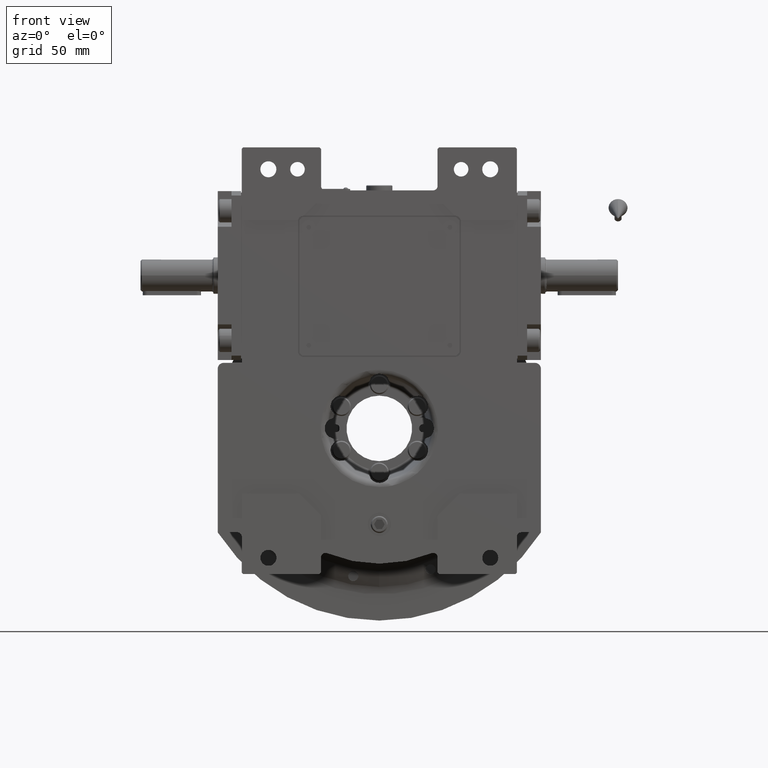
[diagram: clean part render]
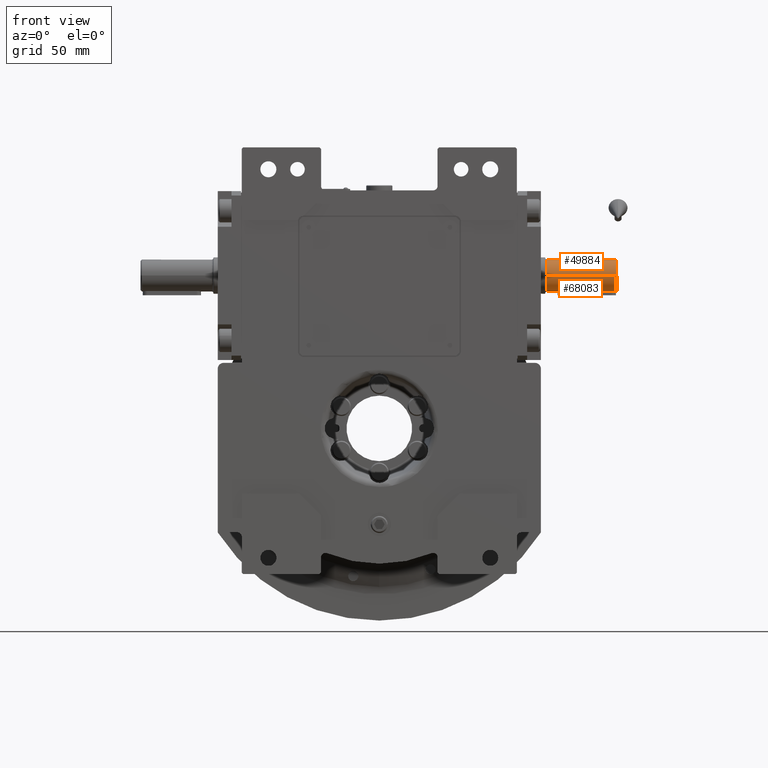
[diagram: same view with one multi-face feature highlighted, each face labeled with its STEP entity id]
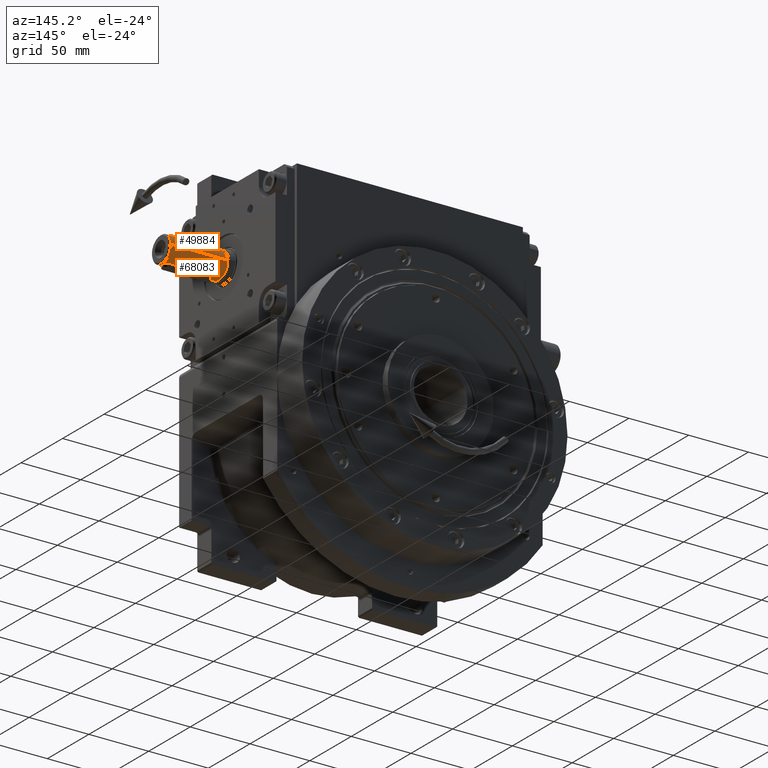
[diagram: same view with one multi-face feature highlighted, each face labeled with its STEP entity id]
A machine part, front view. The highlighted faces form ONE feature: a constant-radius fillet chain: 2 tangent blend faces with common blend radius 11 mm. The faces share edges in the B-rep.
A second angle (auxiliary view) of the same feature is appended — it is thin or edge-on in the first view.
Their STEP definitions:
[1] entity #49884 (Cylinder):
#1221 = CARTESIAN_POINT ( 'NONE',  ( -11.00000000000006573, -68.99999999999998579, 4.629532868172248072E-09 ) ) ;
#2359 = EDGE_CURVE ( 'NONE', #17176, #59268, #30734, .T. ) ;
#2820 = CARTESIAN_POINT ( 'NONE',  ( -9.611494386408557133, -116.9998216058297373, -5.539718941646062156 ) ) ;
#4843 = VERTEX_POINT ( 'NONE', #53805 ) ;
#5066 = CARTESIAN_POINT ( 'NONE',  ( 1.439873256063811002, -116.9998216059483411, -10.99982159980619301 ) ) ;
#7315 = CARTESIAN_POINT ( 'NONE',  ( -5.539718936738628585, -116.9998216058824596, -9.611494389174946917 ) ) ;
#8650 = ORIENTED_EDGE ( 'NONE', *, *, #55269, .F. ) ;
#9881 = DIRECTION ( 'NONE',  ( -4.683861624749757595E-31, 1.000000000000000000, 9.367723249499515189E-31 ) ) ;
#9899 = CARTESIAN_POINT ( 'NONE',  ( 1.059182348684642729E-13, -116.9999108029440293, -10.99991079990969034 ) ) ;
#10403 = EDGE_CURVE ( 'NONE', #17176, #48946, #53160, .T. ) ;
#12144 = CARTESIAN_POINT ( 'NONE',  ( -10.99982159923404978, -116.9998216057902027, -1.439873285504059020 ) ) ;
#14222 = ORIENTED_EDGE ( 'NONE', *, *, #2359, .T. ) ;
#16852 = CARTESIAN_POINT ( 'NONE',  ( -11.00000000000006573, -68.99999999999998579, 5.273559366969493567E-13 ) ) ;
#17176 = VERTEX_POINT ( 'NONE', #1221 ) ;
#17487 = ORIENTED_EDGE ( 'NONE', *, *, #46783, .F. ) ;
#19666 = AXIS2_PLACEMENT_3D ( 'NONE', #48694, #22442, #59393 ) ;
#20591 = CYLINDRICAL_SURFACE ( 'NONE', #53434, 11.00000000000000000 ) ;
#21045 = CARTESIAN_POINT ( 'NONE',  ( 1.059182348684642729E-13, -116.9999108029440293, -10.99991079990969034 ) ) ;
#22101 = EDGE_CURVE ( 'NONE', #59268, #4843, #60435, .T. ) ;
#22442 = DIRECTION ( 'NONE',  ( -1.291895883200174501E-15, -1.000000000000000000, -1.291896081311685042E-15 ) ) ;
#25825 = CARTESIAN_POINT ( 'NONE',  ( 9.611494287303125716, -116.9998216060405696, -5.539719106973016949 ) ) ;
#26505 = CARTESIAN_POINT ( 'NONE',  ( 2.879179983519541519, -116.9998216059615288, -10.71352569620695228 ) ) ;
#26926 = DIRECTION ( 'NONE',  ( 4.683861624749757595E-31, -1.000000000000000000, -9.367723249499515189E-31 ) ) ;
#28394 = ORIENTED_EDGE ( 'NONE', *, *, #10403, .F. ) ;
#28467 = B_SPLINE_CURVE_WITH_KNOTS ( 'NONE', 3,
 ( #9899, #5066, #26505, #53451, #62441, #47222, #25825, #67963, #62771, #57596 ),
 .UNSPECIFIED., .F., .F.,
 ( 4, 2, 2, 2, 4 ),
 ( 0.5000000041388068528, 0.6250000031041051951, 0.7500000020694034264, 0.8750000010347016577, 1.000000000000000000 ),
 .UNSPECIFIED. ) ;
#28607 = VERTEX_POINT ( 'NONE', #21045 ) ;
#28787 = CARTESIAN_POINT ( 'NONE',  ( -11.00000000000000000, -116.9999777057607702, 5.273559366969493567E-13 ) ) ;
#30734 = CIRCLE ( 'NONE', #19666, 11.00000000000000000 ) ;
#33232 = CARTESIAN_POINT ( 'NONE',  ( -10.71352568530421223, -116.9998216058034046, -2.879180036625847094 ) ) ;
#33372 = B_SPLINE_CURVE_WITH_KNOTS ( 'NONE', 3,
 ( #66028, #12144, #33232, #2820, #54325, #39777, #7315, #60858, #54991, #59852 ),
 .UNSPECIFIED., .F., .F.,
 ( 4, 2, 2, 2, 4 ),
 ( 0.000000000000000000, 0.1250000010347017132, 0.2500000020694034264, 0.3750000031041051396, 0.5000000041388068528 ),
 .UNSPECIFIED. ) ;
#35523 = CARTESIAN_POINT ( 'NONE',  ( 10.99999999999993427, -68.99999999999998579, 0.000000000000000000 ) ) ;
#39777 = CARTESIAN_POINT ( 'NONE',  ( -6.759904282614550119, -116.9998216058692577, -8.796192607111159134 ) ) ;
#44292 = VECTOR ( 'NONE', #26926, 1000.000000000000000 ) ;
#44551 = DIRECTION ( 'NONE',  ( 4.683861624749757595E-31, -1.000000000000000000, -9.367723249499515189E-31 ) ) ;
#45040 = CARTESIAN_POINT ( 'NONE',  ( 10.99999999999993427, -68.99999999999998579, -4.629005512235551123E-09 ) ) ;
#46783 = EDGE_CURVE ( 'NONE', #48946, #28607, #33372, .T. ) ;
#47222 = CARTESIAN_POINT ( 'NONE',  ( 8.796192498803552695, -116.9998216060273819, -6.759904418208753540 ) ) ;
#48694 = CARTESIAN_POINT ( 'NONE',  ( 1.776356839400278864E-15, -68.99999999999998579, 0.000000000000000000 ) ) ;
#48946 = VERTEX_POINT ( 'NONE', #28787 ) ;
#49884 = ADVANCED_FACE ( 'NONE', ( #60392 ), #20591, .T. ) ;
#53160 = LINE ( 'NONE', #16852, #44292 ) ;
#53434 = AXIS2_PLACEMENT_3D ( 'NONE', #56897, #9881, #67606 ) ;
#53451 = CARTESIAN_POINT ( 'NONE',  ( 5.539718852179540853, -116.9998216059878615, -9.611494434218551319 ) ) ;
#53805 = CARTESIAN_POINT ( 'NONE',  ( 10.99995538991750088, -116.9999554115215972, -1.645563268981575789E-07 ) ) ;
#54200 = VECTOR ( 'NONE', #44551, 1000.000000000000000 ) ;
#54325 = CARTESIAN_POINT ( 'NONE',  ( -8.796192603699385160, -116.9998216058429392, -6.759904287097091569 ) ) ;
#54991 = CARTESIAN_POINT ( 'NONE',  ( -1.439873279901028313, -116.9998216059219800, -10.99982159983257013 ) ) ;
#55269 = EDGE_CURVE ( 'NONE', #28607, #4843, #28467, .T. ) ;
#56897 = CARTESIAN_POINT ( 'NONE',  ( 3.620748295448003404E-29, -67.99999999999998579, 0.000000000000000000 ) ) ;
#57596 = CARTESIAN_POINT ( 'NONE',  ( 10.99995538991750088, -116.9999554115215972, -1.645563268981575789E-07 ) ) ;
#59268 = VERTEX_POINT ( 'NONE', #45040 ) ;
#59393 = DIRECTION ( 'NONE',  ( -1.000000000000000000, 1.261617073437677851E-15, 8.560159667065924855E-15 ) ) ;
#59852 = CARTESIAN_POINT ( 'NONE',  ( 1.059182348684642729E-13, -116.9999108029440293, -10.99991079990969034 ) ) ;
#60176 = EDGE_LOOP ( 'NONE', ( #61209, #8650, #17487, #28394, #14222 ) ) ;
#60392 = FACE_OUTER_BOUND ( 'NONE', #60176, .T. ) ;
#60435 = LINE ( 'NONE', #35523, #54200 ) ;
#60858 = CARTESIAN_POINT ( 'NONE',  ( -2.879180031158039554, -116.9998216059088207, -10.71352568666365812 ) ) ;
#61209 = ORIENTED_EDGE ( 'NONE', *, *, #22101, .T. ) ;
#62441 = CARTESIAN_POINT ( 'NONE',  ( 6.759904185019784073, -116.9998216060010634, -8.796192678042912050 ) ) ;
#62771 = CARTESIAN_POINT ( 'NONE',  ( 10.99982156150045576, -116.9998216060801184, -1.439873547674197729 ) ) ;
#66028 = CARTESIAN_POINT ( 'NONE',  ( -11.00000000000000000, -116.9999777057607702, 5.273559366969493567E-13 ) ) ;
#67606 = DIRECTION ( 'NONE',  ( 1.000000000000000000, 0.000000000000000000, -8.437694987151189707E-15 ) ) ;
#67963 = CARTESIAN_POINT ( 'NONE',  ( 10.71352561977216489, -116.9998216060669591, -2.879180267529457105 ) ) ;
[2] entity #68083 (Cylinder):
#528 = CARTESIAN_POINT ( 'NONE',  ( 2.715325038918777523, -114.7760518172380699, 10.65964338194962124 ) ) ;
#1221 = CARTESIAN_POINT ( 'NONE',  ( -11.00000000000006573, -68.99999999999998579, 4.629532868172248072E-09 ) ) ;
#1877 = CARTESIAN_POINT ( 'NONE',  ( 2.831211770136889072, -78.50588405666756842, 10.62945303911932804 ) ) ;
#3230 = CARTESIAN_POINT ( 'NONE',  ( -1.678559112345122672, -77.01162412007894886, 10.87070389964726402 ) ) ;
#3271 = CARTESIAN_POINT ( 'NONE',  ( -1.167542354307712582, -116.2634876482831885, 10.93782163464070400 ) ) ;
#3576 = CARTESIAN_POINT ( 'NONE',  ( -1.765016624746357010, -77.07156072167512662, 10.85718209647029475 ) ) ;
#3911 = CARTESIAN_POINT ( 'NONE',  ( -2.767734022706493047, -78.34256117663541374, 10.64590627712732740 ) ) ;
#3953 = CARTESIAN_POINT ( 'NONE',  ( -0.7693703390108382889, -116.4290453187169447, 10.97984354623238090 ) ) ;
#4236 = CARTESIAN_POINT ( 'NONE',  ( -2.076400037132151599, -77.33447251311093851, 10.80229493266119434 ) ) ;
#4572 = CARTESIAN_POINT ( 'NONE',  ( 0.7694194017131937846, -76.57097508176855172, 10.97983836647602018 ) ) ;
#4585 = VERTEX_POINT ( 'NONE', #32574 ) ;
#4677 = CARTESIAN_POINT ( 'NONE',  ( 0.3790608987632844706, -116.4824670251810517, 10.99496090284166705 ) ) ;
#4843 = VERTEX_POINT ( 'NONE', #53805 ) ;
#5323 = EDGE_CURVE ( 'NONE', #4585, #35935, #43647, .T. ) ;
#5450 = VECTOR ( 'NONE', #17683, 1000.000000000000000 ) ;
#5485 = VERTEX_POINT ( 'NONE', #23314 ) ;
#5690 = CARTESIAN_POINT ( 'NONE',  ( 0.6690861450673732946, -116.4260934555811104, 10.97984357599114880 ) ) ;
#6044 = CARTESIAN_POINT ( 'NONE',  ( 1.678559104117559819, -115.9883758853584084, 10.87070390129213138 ) ) ;
#6308 = CARTESIAN_POINT ( 'NONE',  ( -3.000000000000082601, -79.50000000000000000, 10.58300524425888334 ) ) ;
#7724 = CARTESIAN_POINT ( 'NONE',  ( 2.722192573648582137, -78.23282225677793633, 10.65774367791932775 ) ) ;
#8740 = CARTESIAN_POINT ( 'NONE',  ( -2.759870980699486331, -78.32389235596372146, 10.64795842689012595 ) ) ;
#8780 = CARTESIAN_POINT ( 'NONE',  ( -1.761503382609289847, -115.9362690075038529, 10.85852761684812862 ) ) ;
#8968 = ORIENTED_EDGE ( 'NONE', *, *, #29864, .F. ) ;
#9094 = CARTESIAN_POINT ( 'NONE',  ( -2.446669716984170240, -77.75293800781821574, 10.72593579876058989 ) ) ;
#9421 = CARTESIAN_POINT ( 'NONE',  ( -0.9835474860783316453, -76.66500154434591252, 10.95606725368482159 ) ) ;
#9462 = CARTESIAN_POINT ( 'NONE',  ( -1.179703648397006699, -116.2583393865913735, 10.93651199430380849 ) ) ;
#9580 = VERTEX_POINT ( 'NONE', #6308 ) ;
#9752 = CARTESIAN_POINT ( 'NONE',  ( -0.1869661389846583033, -76.49999999149008545, 11.00000259683246107 ) ) ;
#9910 = CARTESIAN_POINT ( 'NONE',  ( -1.439873276542319003, -116.9998216057749829, 10.99982160044518054 ) ) ;
#10092 = CARTESIAN_POINT ( 'NONE',  ( -1.897425705273303231, -77.17558051408445863, 10.83486051008065232 ) ) ;
#10205 = CARTESIAN_POINT ( 'NONE',  ( 2.698907439500289662, -114.8105446094941016, 10.66393854603839664 ) ) ;
#10403 = EDGE_CURVE ( 'NONE', #17176, #48946, #53160, .T. ) ;
#10541 = CARTESIAN_POINT ( 'NONE',  ( 2.748365588725772746, -114.7029063017646848, 10.65097208023461306 ) ) ;
#10870 = CARTESIAN_POINT ( 'NONE',  ( 2.759870969660119577, -114.6761076698510777, 10.64795842477048460 ) ) ;
#11566 = CARTESIAN_POINT ( 'NONE',  ( 1.897425668525942299, -115.8244195156949559, 10.83486051743275169 ) ) ;
#12212 = CARTESIAN_POINT ( 'NONE',  ( -9.611494385370821902, -116.9998216057772851, 5.539718943597145007 ) ) ;
#12894 = CARTESIAN_POINT ( 'NONE',  ( 2.775339617218714139, -78.36091024210715261, 10.64392872073233676 ) ) ;
#13230 = CARTESIAN_POINT ( 'NONE',  ( 2.772312094891018042, -78.35357017498775178, 10.64471543622012106 ) ) ;
#13403 = CARTESIAN_POINT ( 'NONE',  ( 10.71352568672909200, -116.9998216057713591, 2.879180031534910089 ) ) ;
#13533 = CARTESIAN_POINT ( 'NONE',  ( -3.000000000000082601, -79.50000000000000000, 10.58300524425888334 ) ) ;
#13958 = CARTESIAN_POINT ( 'NONE',  ( -1.157453281878278117, -116.2677325929767704, 10.93890079742459598 ) ) ;
#14704 = ORIENTED_EDGE ( 'NONE', *, *, #58009, .T. ) ;
#14925 = CARTESIAN_POINT ( 'NONE',  ( -2.768513025353059209, -78.34441746032423737, 10.64570308239705554 ) ) ;
#14965 = CARTESIAN_POINT ( 'NONE',  ( -2.722192558514678673, -114.7671777832958497, 10.65774368688965446 ) ) ;
#15255 = CARTESIAN_POINT ( 'NONE',  ( 1.167542316111690681, -76.73651233557792750, 10.93782163668136320 ) ) ;
#15419 = CARTESIAN_POINT ( 'NONE',  ( -8.796192602316857290, -116.9998216057769156, 6.759904289042772518 ) ) ;
#16050 = CARTESIAN_POINT ( 'NONE',  ( 2.837096110529150057E-11, -116.4999999999980531, 11.00000000000058797 ) ) ;
#16385 = CARTESIAN_POINT ( 'NONE',  ( 2.999999999999917843, -113.5000000000000000, 10.58300524425888334 ) ) ;
#16727 = FACE_BOUND ( 'NONE', #39452, .T. ) ;
#16733 = CARTESIAN_POINT ( 'NONE',  ( 1.139535427848337612, -116.2751577802371230, 10.94078554931923719 ) ) ;
#16817 = CARTESIAN_POINT ( 'NONE',  ( 2.999999999999917843, -79.50000000000000000, 10.58300524425835576 ) ) ;
#16852 = CARTESIAN_POINT ( 'NONE',  ( -11.00000000000006573, -68.99999999999998579, 5.273559366969493567E-13 ) ) ;
#17088 = AXIS2_PLACEMENT_3D ( 'NONE', #32958, #28153, #33660 ) ;
#17176 = VERTEX_POINT ( 'NONE', #1221 ) ;
#17393 = CARTESIAN_POINT ( 'NONE',  ( 2.854075951825543633, -78.57447758768164192, 10.62355100343920711 ) ) ;
#17683 = DIRECTION ( 'NONE',  ( 4.683861624749757595E-31, -1.000000000000000000, -9.367723249499515189E-31 ) ) ;
#17735 = CARTESIAN_POINT ( 'NONE',  ( 2.143602725504767825, -77.40095987968619795, 10.78918131756561039 ) ) ;
#18128 = CARTESIAN_POINT ( 'NONE',  ( -2.779840276394627274, -114.6280618357305627, 10.64275983503487488 ) ) ;
#18799 = CARTESIAN_POINT ( 'NONE',  ( -2.772312108321376645, -114.6464297925434010, 10.64471543525007213 ) ) ;
#19117 = CARTESIAN_POINT ( 'NONE',  ( -2.748365590163604821, -78.29709370118115430, 10.65097208548594132 ) ) ;
#19450 = CARTESIAN_POINT ( 'NONE',  ( -2.644564864743140564, -78.08127139920622994, 10.67795870610222941 ) ) ;
#19489 = CARTESIAN_POINT ( 'NONE',  ( -2.211193640723287057, -115.5277207285564600, 10.77562492031094799 ) ) ;
#19784 = CARTESIAN_POINT ( 'NONE',  ( 1.433641062204116023, -76.86340365390795171, 10.90581971317306831 ) ) ;
#19822 = CARTESIAN_POINT ( 'NONE',  ( -1.159479195746270008, -116.2668803960322350, 10.93868411794469786 ) ) ;
#20128 = CARTESIAN_POINT ( 'NONE',  ( -1.942007626757400685, -77.21260546847977935, 10.82708016768007298 ) ) ;
#20280 = B_SPLINE_CURVE_WITH_KNOTS ( 'NONE', 3,
 ( #64792, #60996, #54090, #22660, #23338, #66149, #65486, #24012, #45081, #18128, #39228, #18799, #14965, #40911, #62332, #61993, #45774, #45431, #46788, #19489, #40569, #25725, #56807, #8780, #66500, #35722, #50609, #40250, #30554, #61653, #9462, #3271, #19822, #13958, #3953, #34724, #46100 ),
 .UNSPECIFIED., .F., .F.,
 ( 4, 2, 2, 1, 1, 1, 2, 2, 2, 2, 2, 2, 2, 2, 2, 2, 1, 1, 2, 2, 4 ),
 ( 0.000000000000000000, 0.06249999999998985534, 0.09374999999998478994, 0.1093749999999822503, 0.1171874999999809736, 0.1210937499999824446, 0.1230468749999852895, 0.1249999999999881484, 0.1875000000000021927, 0.2187500000000092704, 0.2343750000000113520, 0.2421875000000136835, 0.2500000000000159872, 0.3125000000000249245, 0.3437500000000282552, 0.3593750000000310862, 0.3671875000000324740, 0.3710937500000331957, 0.3730468750000335287, 0.3750000000000338618, 0.5000000000000000000 ),
 .UNSPECIFIED. ) ;
#20284 = CARTESIAN_POINT ( 'NONE',  ( -2.879180028076383735, -116.9998216057753240, 10.71352568765480306 ) ) ;
#20466 = CARTESIAN_POINT ( 'NONE',  ( 1.234039142366801567, -76.76549620150768760, 10.93043900252538592 ) ) ;
#20562 = CARTESIAN_POINT ( 'NONE',  ( 1.147497220844261756, -116.2718709842093432, 10.93995103843589156 ) ) ;
#21599 = CARTESIAN_POINT ( 'NONE',  ( 2.916726216703149799, -114.2985075118388494, 10.60716823416540322 ) ) ;
#21624 = ORIENTED_EDGE ( 'NONE', *, *, #58755, .T. ) ;
#21905 = CARTESIAN_POINT ( 'NONE',  ( 8.796192606682849302, -116.9998216057723539, 6.759904283369201572 ) ) ;
#22085 = AXIS2_PLACEMENT_3D ( 'NONE', #36802, #31295, #30937 ) ;
#22101 = EDGE_CURVE ( 'NONE', #59268, #4843, #60435, .T. ) ;
#22660 = CARTESIAN_POINT ( 'NONE',  ( -2.920736592802984255, -114.1920781631040569, 10.60630209123759293 ) ) ;
#22954 = CARTESIAN_POINT ( 'NONE',  ( 2.786545469111056939, -78.38850862936133979, 10.64101914187372699 ) ) ;
#23314 = CARTESIAN_POINT ( 'NONE',  ( -3.000000000000082601, -113.5000000000000000, 10.58300524425888334 ) ) ;
#23338 = CARTESIAN_POINT ( 'NONE',  ( -2.896620549922772181, -114.2867366109770018, 10.61255509526307073 ) ) ;
#23384 = LINE ( 'NONE', #39948, #42516 ) ;
#23695 = CIRCLE ( 'NONE', #17088, 11.00000000000000000 ) ;
#24012 = CARTESIAN_POINT ( 'NONE',  ( -2.801868858471037171, -114.5726274570406389, 10.63704590494192814 ) ) ;
#24432 = ORIENTED_EDGE ( 'NONE', *, *, #5323, .F. ) ;
#24668 = CARTESIAN_POINT ( 'NONE',  ( -3.000000000000082601, -79.50000000000000000, 10.58300524425888334 ) ) ;
#25212 = EDGE_CURVE ( 'NONE', #5485, #4585, #20280, .T. ) ;
#25328 = CARTESIAN_POINT ( 'NONE',  ( -2.737723616404224458, -78.27313652861781179, 10.65376796770270751 ) ) ;
#25524 = ORIENTED_EDGE ( 'NONE', *, *, #60569, .F. ) ;
#25683 = CARTESIAN_POINT ( 'NONE',  ( -1.279005678297201243, -76.78279253541896310, 10.92607962578695258 ) ) ;
#25725 = CARTESIAN_POINT ( 'NONE',  ( -2.143602779757351584, -115.5990400649898362, 10.78918130667870123 ) ) ;
#25780 = CARTESIAN_POINT ( 'NONE',  ( 1.942007582223224338, -115.7873945689959356, 10.82708017654128163 ) ) ;
#26106 = FACE_OUTER_BOUND ( 'NONE', #41142, .T. ) ;
#26457 = CARTESIAN_POINT ( 'NONE',  ( 0.1869927880868786918, -116.4999999999999858, 11.00000000786161714 ) ) ;
#26814 = CARTESIAN_POINT ( 'NONE',  ( 1.429970973200719087, -116.1445195910034442, 10.90719154464766838 ) ) ;
#26926 = DIRECTION ( 'NONE',  ( 4.683861624749757595E-31, -1.000000000000000000, -9.367723249499515189E-31 ) ) ;
#27151 = CARTESIAN_POINT ( 'NONE',  ( 2.446669781231637586, -115.2470619033333037, 10.72593578221666100 ) ) ;
#27456 = CARTESIAN_POINT ( 'NONE',  ( 6.759904286206374735, -116.9998216057730076, 8.796192604501770873 ) ) ;
#28153 = DIRECTION ( 'NONE',  ( 4.683861624749757595E-31, -1.000000000000000000, -9.367723249499515189E-31 ) ) ;
#28162 = CARTESIAN_POINT ( 'NONE',  ( 2.896620484583251276, -78.71326315310376742, 10.61255512167188897 ) ) ;
#28787 = CARTESIAN_POINT ( 'NONE',  ( -11.00000000000000000, -116.9999777057607702, 5.273559366969493567E-13 ) ) ;
#29864 = EDGE_CURVE ( 'NONE', #47438, #9580, #51126, .T. ) ;
#30190 = CARTESIAN_POINT ( 'NONE',  ( -1.109627269029183294, -76.71270408451657374, 10.94387156488007484 ) ) ;
#30516 = CARTESIAN_POINT ( 'NONE',  ( -1.067681326169005018, -76.69621418723968986, 10.94807461813110194 ) ) ;
#30554 = CARTESIAN_POINT ( 'NONE',  ( -1.234039166886819361, -116.2345037874058988, 10.93043900165480764 ) ) ;
#30847 = CARTESIAN_POINT ( 'NONE',  ( -0.6690472934565363516, -76.57389766019711885, 10.97984745790820327 ) ) ;
#30937 = DIRECTION ( 'NONE',  ( 1.000000000000000000, 0.000000000000000000, -8.437694987151189707E-15 ) ) ;
#31005 = CARTESIAN_POINT ( 'NONE',  ( -10.99982159904757850, -116.9998216057782656, 1.439873287190206019 ) ) ;
#31295 = DIRECTION ( 'NONE',  ( -4.683861624749757595E-31, 1.000000000000000000, 9.367723249499515189E-31 ) ) ;
#31632 = CARTESIAN_POINT ( 'NONE',  ( 2.767734004598684461, -114.6574388666513187, 10.64590627739872986 ) ) ;
#31974 = CARTESIAN_POINT ( 'NONE',  ( 2.768513007301086404, -114.6555825828830706, 10.64570308271092358 ) ) ;
#32574 = CARTESIAN_POINT ( 'NONE',  ( 2.837096110529150057E-11, -116.4999999999980531, 11.00000000000058797 ) ) ;
#32658 = CARTESIAN_POINT ( 'NONE',  ( 0.7660652479745130305, -116.4022992055863170, 10.97354468882087453 ) ) ;
#32958 = CARTESIAN_POINT ( 'NONE',  ( 8.881784197001548146E-16, -68.99999999999998579, 0.000000000000000000 ) ) ;
#33660 = DIRECTION ( 'NONE',  ( 1.000000000000000000, 0.000000000000000000, -8.276208001751167081E-15 ) ) ;
#34081 = DIRECTION ( 'NONE',  ( 4.683861624749757595E-31, -1.000000000000000000, -9.367723249499515189E-31 ) ) ;
#34330 = CARTESIAN_POINT ( 'NONE',  ( 2.232376894957614599, -77.49564128694471776, 10.77130172608442749 ) ) ;
#34510 = CARTESIAN_POINT ( 'NONE',  ( 9.611494388950328371, -116.9998216057720128, 5.539718937397273280 ) ) ;
#34685 = CARTESIAN_POINT ( 'NONE',  ( 2.211193619837492630, -77.47227924851306113, 10.77562492454675080 ) ) ;
#34724 = CARTESIAN_POINT ( 'NONE',  ( -0.3739855761740376039, -116.4999999999999716, 10.99999998428028825 ) ) ;
#35010 = CARTESIAN_POINT ( 'NONE',  ( -2.715325017849326450, -78.22394813727751739, 10.65964339383956627 ) ) ;
#35523 = CARTESIAN_POINT ( 'NONE',  ( 10.99999999999993427, -68.99999999999998579, 0.000000000000000000 ) ) ;
#35679 = CARTESIAN_POINT ( 'NONE',  ( 1.208542002000072113, -76.75409401516559171, 10.93334476044181081 ) ) ;
#35722 = CARTESIAN_POINT ( 'NONE',  ( -1.433641063893448919, -116.1365963449420207, 10.90581971387478966 ) ) ;
#35935 = VERTEX_POINT ( 'NONE', #38107 ) ;
#36168 = CARTESIAN_POINT ( 'NONE',  ( -5.539718934293395236, -116.9998216057759919, 9.611494390734923954 ) ) ;
#36347 = CARTESIAN_POINT ( 'NONE',  ( -2.031554838453828005, -77.29234709498308575, 10.81075490226983504 ) ) ;
#36438 = CARTESIAN_POINT ( 'NONE',  ( 2.097777976927079902, -115.6448604349309761, 10.79818610642162291 ) ) ;
#36802 = CARTESIAN_POINT ( 'NONE',  ( 3.620748295448003404E-29, -67.99999999999998579, 0.000000000000000000 ) ) ;
#36806 = CARTESIAN_POINT ( 'NONE',  ( 2.076399965682240722, -115.6655275552938775, 10.80229494691780623 ) ) ;
#37171 = ORIENTED_EDGE ( 'NONE', *, *, #67823, .F. ) ;
#37837 = CARTESIAN_POINT ( 'NONE',  ( 1.765016607905284918, -115.9284392897329070, 10.85718209990784544 ) ) ;
#38107 = CARTESIAN_POINT ( 'NONE',  ( 2.999999999999917843, -113.5000000000000000, 10.58300524425888334 ) ) ;
#38848 = CARTESIAN_POINT ( 'NONE',  ( 1.942138540626250132, -77.19951516769786792, 10.82877006683137111 ) ) ;
#39228 = CARTESIAN_POINT ( 'NONE',  ( -2.775339633358666624, -114.6390897185938229, 10.64392871889955750 ) ) ;
#39452 = EDGE_LOOP ( 'NONE', ( #21624, #24432, #59261, #37171, #8968 ) ) ;
#39512 = CARTESIAN_POINT ( 'NONE',  ( 2.801868823614517279, -78.42737245258072676, 10.63704591330662375 ) ) ;
#39948 = CARTESIAN_POINT ( 'NONE',  ( 2.999999999999917843, -79.50000000000000000, 10.58300524425835576 ) ) ;
#40214 = CARTESIAN_POINT ( 'NONE',  ( -2.916726425408743051, -78.70149300909199042, 10.60716817196950323 ) ) ;
#40250 = CARTESIAN_POINT ( 'NONE',  ( -1.286031883997654557, -116.2106413463111778, 10.92437284050050117 ) ) ;
#40569 = CARTESIAN_POINT ( 'NONE',  ( -2.167336623624058767, -115.5745314241270307, 10.78446055697847505 ) ) ;
#40871 = CARTESIAN_POINT ( 'NONE',  ( -1.127575323568934751, -76.71996122390243045, 10.94202595588516935 ) ) ;
#40911 = CARTESIAN_POINT ( 'NONE',  ( -2.653232687529222478, -114.9137802569881899, 10.67643290050094684 ) ) ;
#41142 = EDGE_LOOP ( 'NONE', ( #68206, #25524, #51746, #14704 ) ) ;
#41219 = CARTESIAN_POINT ( 'NONE',  ( -0.7660300046399279861, -76.59769126056194466, 10.97354824663536554 ) ) ;
#41549 = CARTESIAN_POINT ( 'NONE',  ( 1.286031867902183601, -76.78935864596759586, 10.92437284069521120 ) ) ;
#41644 = CARTESIAN_POINT ( 'NONE',  ( 2.601559668077606524, -114.9971612710557594, 10.68881831214420686 ) ) ;
#42516 = VECTOR ( 'NONE', #34081, 1000.000000000000000 ) ;
#42673 = CARTESIAN_POINT ( 'NONE',  ( 2.764613468312097755, -114.6648727917993398, 10.64672004479397138 ) ) ;
#43647 = B_SPLINE_CURVE_WITH_KNOTS ( 'NONE', 3,
 ( #16050, #26457, #4677, #5690, #32658, #64089, #47517, #57539, #58920, #63070, #16733, #20562, #47877, #26814, #6044, #37837, #11566, #25780, #48200, #52374, #36806, #36438, #46843, #27151, #41644, #57897, #10205, #528, #58571, #10541, #10870, #42673, #31632, #31974, #21599, #63753, #16385 ),
 .UNSPECIFIED., .F., .F.,
 ( 4, 2, 2, 1, 1, 1, 2, 2, 2, 2, 2, 2, 2, 2, 2, 2, 1, 1, 2, 2, 4 ),
 ( 0.5000000000000000000, 0.5624999999999628075, 0.5937499999999438227, 0.6093749999999336087, 0.6171874999999292788, 0.6210937499999279465, 0.6230468749999271694, 0.6249999999999265032, 0.6874999999999658051, 0.7187499999999854561, 0.7343749999999941158, 0.7421874999999984457, 0.7500000000000027756, 0.8125000000000532907, 0.8437500000000786038, 0.8593750000000912603, 0.8671875000000949241, 0.8710937500000937028, 0.8730468750000901501, 0.8750000000000865974, 1.000000000000000000 ),
 .UNSPECIFIED. ) ;
#43674 = CARTESIAN_POINT ( 'NONE',  ( 2.920736532394191176, -78.80792158156889116, 10.60630211995091443 ) ) ;
#44292 = VECTOR ( 'NONE', #26926, 1000.000000000000000 ) ;
#44551 = DIRECTION ( 'NONE',  ( 4.683861624749757595E-31, -1.000000000000000000, -9.367723249499515189E-31 ) ) ;
#44710 = CARTESIAN_POINT ( 'NONE',  ( 2.653232724334183779, -78.08621981117362054, 10.67643288750583785 ) ) ;
#45040 = CARTESIAN_POINT ( 'NONE',  ( 10.99999999999993427, -68.99999999999998579, -4.629005512235551123E-09 ) ) ;
#45081 = CARTESIAN_POINT ( 'NONE',  ( -2.786545493596253475, -114.6114913094266399, 10.64101913722788417 ) ) ;
#45431 = CARTESIAN_POINT ( 'NONE',  ( -2.293773036812421839, -115.4345405295434972, 10.75861599544981395 ) ) ;
#45736 = CARTESIAN_POINT ( 'NONE',  ( 1.322026423818305263, -76.80667716721666238, 10.91998920481200308 ) ) ;
#45774 = CARTESIAN_POINT ( 'NONE',  ( -2.331831469175948079, -115.3883554059572987, 10.75053732846677157 ) ) ;
#46062 = CARTESIAN_POINT ( 'NONE',  ( 1.159479155629942637, -76.73311958715522962, 10.93868412015461544 ) ) ;
#46100 = CARTESIAN_POINT ( 'NONE',  ( 2.837096110529150057E-11, -116.4999999999980531, 11.00000000000058797 ) ) ;
#46392 = CARTESIAN_POINT ( 'NONE',  ( 1.179703613025642195, -76.74166059826983144, 10.93651199609664815 ) ) ;
#46788 = CARTESIAN_POINT ( 'NONE',  ( -2.232376909489443229, -115.5043586967387341, 10.77130172318774193 ) ) ;
#46843 = CARTESIAN_POINT ( 'NONE',  ( 2.308734620819977490, -115.4339242236076473, 10.75673222121952222 ) ) ;
#46904 = CARTESIAN_POINT ( 'NONE',  ( -11.00000000000000000, -116.9999777057607702, 5.273559366969493567E-13 ) ) ;
#47438 = VERTEX_POINT ( 'NONE', #16817 ) ;
#47517 = CARTESIAN_POINT ( 'NONE',  ( 0.9835665969756468563, -116.3349916642417696, 10.95606527486000203 ) ) ;
#47877 = CARTESIAN_POINT ( 'NONE',  ( 1.279005655865138591, -116.2172074779271895, 10.92607962582159509 ) ) ;
#48200 = CARTESIAN_POINT ( 'NONE',  ( 2.009136411243431564, -115.7280625489282926, 10.81489994510440589 ) ) ;
#48521 = CARTESIAN_POINT ( 'NONE',  ( 1.439873283640849655, -116.9998216057743434, 10.99982159951664329 ) ) ;
#48946 = VERTEX_POINT ( 'NONE', #28787 ) ;
#49218 = CARTESIAN_POINT ( 'NONE',  ( 5.539718940497232680, -116.9998216057733060, 9.611494387162299091 ) ) ;
#50609 = CARTESIAN_POINT ( 'NONE',  ( -1.322026435466436611, -116.1933228270091973, 10.91998920493845660 ) ) ;
#50906 = CARTESIAN_POINT ( 'NONE',  ( -0.9111085654619999197, -76.64125365261293155, 10.96220927681944879 ) ) ;
#51126 = B_SPLINE_CURVE_WITH_KNOTS ( 'NONE', 3,
 ( #60262, #59572, #55076, #43674, #28162, #17393, #1877, #39512, #22954, #54743, #12894, #13230, #7724, #44710, #60952, #65099, #65779, #60601, #34330, #34685, #55758, #17735, #38848, #59934, #66458, #19784, #45736, #41549, #20466, #35679, #46392, #15255, #46062, #67130, #4572, #67817, #9752, #56770, #30847, #41219, #50906, #9421, #30516, #30190, #40871, #51914, #51257, #25683, #67467, #3230, #3576, #10092, #20128, #62618, #36347, #4236, #57093, #56424, #9094, #61948, #19450, #66800, #35010, #25328, #19117, #8740, #62292, #3911, #14925, #40214, #51577, #24668 ),
 .UNSPECIFIED., .F., .F.,
 ( 4, 2, 2, 1, 1, 1, 2, 2, 2, 2, 2, 2, 2, 2, 2, 2, 1, 1, 2, 2, 2, 2, 2, 1, 1, 1, 2, 2, 2, 2, 2, 2, 2, 2, 2, 2, 1, 1, 2, 2, 4 ),
 ( 0.000000000000000000, 0.06250000000007244205, 0.09375000000010866308, 0.1093750000001268013, 0.1171875000001358497, 0.1210937500001382922, 0.1230468750001395134, 0.1250000000001407208, 0.1875000000002039757, 0.2187500000002355893, 0.2343750000002499667, 0.2421875000002571277, 0.2500000000002642331, 0.3125000000003064771, 0.3437500000003286815, 0.3593750000003410605, 0.3671875000003460565, 0.3710937500003485545, 0.3730468750003497758, 0.3750000000003509970, 0.5000000000003764766, 0.5625000000003891332, 0.5937500000003960166, 0.6093750000004000134, 0.6171875000004020118, 0.6210937500004037881, 0.6230468750004046763, 0.6250000000004054534, 0.6875000000003779199, 0.7187500000003630429, 0.7343750000003567147, 0.7421875000003534950, 0.7500000000003503864, 0.8125000000003315126, 0.8437500000003239631, 0.8593750000003201883, 0.8671875000003155254, 0.8710937500003103073, 0.8730468750003077538, 0.8750000000003050893, 1.000000000000000000 ),
 .UNSPECIFIED. ) ;
#51257 = CARTESIAN_POINT ( 'NONE',  ( -1.147497296970096281, -76.72812904730778882, 10.93995103367312538 ) ) ;
#51577 = CARTESIAN_POINT ( 'NONE',  ( -3.000000000000091482, -79.09379624971502665, 10.58646650751519935 ) ) ;
#51746 = ORIENTED_EDGE ( 'NONE', *, *, #22101, .F. ) ;
#51914 = CARTESIAN_POINT ( 'NONE',  ( -1.139533978095616629, -76.72484162259281959, 10.94078570534217221 ) ) ;
#52374 = CARTESIAN_POINT ( 'NONE',  ( 2.031554776416901742, -115.7076529620028538, 10.81075491460883775 ) ) ;
#53160 = LINE ( 'NONE', #16852, #44292 ) ;
#53377 = CARTESIAN_POINT ( 'NONE',  ( 2.879180034990418857, -116.9998216057739739, 10.71352568579808739 ) ) ;
#53805 = CARTESIAN_POINT ( 'NONE',  ( 10.99995538991750088, -116.9999554115215972, -1.645563268981575789E-07 ) ) ;
#54090 = CARTESIAN_POINT ( 'NONE',  ( -2.979326682313856445, -113.9028774423900643, 10.59077584461373078 ) ) ;
#54200 = VECTOR ( 'NONE', #44551, 1000.000000000000000 ) ;
#54743 = CARTESIAN_POINT ( 'NONE',  ( 2.779840256849175351, -78.37193811612976901, 10.64275983800393988 ) ) ;
#55076 = CARTESIAN_POINT ( 'NONE',  ( 2.979326648548494827, -79.09712230524529275, 10.59077587315972657 ) ) ;
#55758 = CARTESIAN_POINT ( 'NONE',  ( 2.167336588692278188, -77.42546853922712558, 10.78446056406795961 ) ) ;
#56424 = CARTESIAN_POINT ( 'NONE',  ( -2.308734591550942294, -77.56607576150203442, 10.75673222596958034 ) ) ;
#56770 = CARTESIAN_POINT ( 'NONE',  ( -0.3790212450200711736, -76.51752793284674681, 10.99496478591340498 ) ) ;
#56807 = CARTESIAN_POINT ( 'NONE',  ( -1.942138565873592126, -115.8004848156718936, 10.82877006206964232 ) ) ;
#57093 = CARTESIAN_POINT ( 'NONE',  ( -2.097778072079661715, -77.35513965841522577, 10.79818608745951636 ) ) ;
#57539 = CARTESIAN_POINT ( 'NONE',  ( 1.067691426591269810, -116.3037819193287561, 10.94807356021519062 ) ) ;
#57897 = CARTESIAN_POINT ( 'NONE',  ( 2.644564917215546984, -114.9187285013316142, 10.67795868685869998 ) ) ;
#58009 = EDGE_CURVE ( 'NONE', #59268, #17176, #23695, .T. ) ;
#58571 = CARTESIAN_POINT ( 'NONE',  ( 2.737723622716650151, -114.7268634571266404, 10.65376796009345028 ) ) ;
#58755 = EDGE_CURVE ( 'NONE', #47438, #35935, #23384, .T. ) ;
#58897 = CARTESIAN_POINT ( 'NONE',  ( -6.759904280527966769, -116.9998216057763045, 8.796192608861455042 ) ) ;
#58917 = CYLINDRICAL_SURFACE ( 'NONE', #22085, 11.00000000000000000 ) ;
#58920 = CARTESIAN_POINT ( 'NONE',  ( 1.109632424199961998, -116.2872938505194043, 10.94387102052855276 ) ) ;
#59261 = ORIENTED_EDGE ( 'NONE', *, *, #25212, .F. ) ;
#59268 = VERTEX_POINT ( 'NONE', #45040 ) ;
#59568 = CARTESIAN_POINT ( 'NONE',  ( -10.71352568486469892, -116.9998216057779246, 2.879180038446883305 ) ) ;
#59572 = CARTESIAN_POINT ( 'NONE',  ( 2.999999999999910738, -79.29694169600053044, 10.58473538646124013 ) ) ;
#59934 = CARTESIAN_POINT ( 'NONE',  ( 1.761503377484132216, -77.06373098914650654, 10.85852761823578660 ) ) ;
#60262 = CARTESIAN_POINT ( 'NONE',  ( 2.999999999999917843, -79.50000000000000000, 10.58300524425835576 ) ) ;
#60435 = LINE ( 'NONE', #35523, #54200 ) ;
#60569 = EDGE_CURVE ( 'NONE', #4843, #48946, #67417, .T. ) ;
#60601 = CARTESIAN_POINT ( 'NONE',  ( 2.293773039474487518, -77.56545947306697997, 10.75861599459231854 ) ) ;
#60763 = CARTESIAN_POINT ( 'NONE',  ( 10.99995538991750088, -116.9999554115215972, -1.645563268981575789E-07 ) ) ;
#60952 = CARTESIAN_POINT ( 'NONE',  ( 2.498350456179811108, -77.83631445998510401, 10.71355034652106575 ) ) ;
#60996 = CARTESIAN_POINT ( 'NONE',  ( -3.000000000000088818, -113.7030581364575141, 10.58473536746791943 ) ) ;
#61653 = CARTESIAN_POINT ( 'NONE',  ( -1.208542031170318332, -116.2459059719536612, 10.93334475918476834 ) ) ;
#61948 = CARTESIAN_POINT ( 'NONE',  ( -2.601559605839216083, -78.00283862112350164, 10.68881833245351842 ) ) ;
#61993 = CARTESIAN_POINT ( 'NONE',  ( -2.438082247045823436, -115.2518708616870668, 10.72743678204439455 ) ) ;
#62292 = CARTESIAN_POINT ( 'NONE',  ( -2.764613483578145292, -78.33512724441825981, 10.64672004548986095 ) ) ;
#62332 = CARTESIAN_POINT ( 'NONE',  ( -2.498350418667751871, -115.1636855961535559, 10.71355035713179937 ) ) ;
#62618 = CARTESIAN_POINT ( 'NONE',  ( -2.009136468744561199, -77.27193750283701945, 10.81489993367314995 ) ) ;
#63070 = CARTESIAN_POINT ( 'NONE',  ( 1.127578267554645519, -116.2800375801543709, 10.94202564301337333 ) ) ;
#63753 = CARTESIAN_POINT ( 'NONE',  ( 2.999999999999910738, -113.9062042931790870, 10.58646656928932828 ) ) ;
#64089 = CARTESIAN_POINT ( 'NONE',  ( 0.9111338142873217638, -116.3587382414603013, 10.96220669073531795 ) ) ;
#64792 = CARTESIAN_POINT ( 'NONE',  ( -3.000000000000082601, -113.5000000000000000, 10.58300524425888334 ) ) ;
#65099 = CARTESIAN_POINT ( 'NONE',  ( 2.438082279259238927, -77.74812918157674346, 10.72743677363205350 ) ) ;
#65486 = CARTESIAN_POINT ( 'NONE',  ( -2.831211821317979549, -114.4941158000846997, 10.62945302409138826 ) ) ;
#65779 = CARTESIAN_POINT ( 'NONE',  ( 2.331831480809918311, -77.61164460804549492, 10.75053732545739926 ) ) ;
#66149 = CARTESIAN_POINT ( 'NONE',  ( -2.854076010124553697, -114.4255222335273601, 10.62355098402757214 ) ) ;
#66396 = LINE ( 'NONE', #13533, #5450 ) ;
#66458 = CARTESIAN_POINT ( 'NONE',  ( 1.512920505477118427, -76.90757897812876820, 10.89501527342804543 ) ) ;
#66500 = CARTESIAN_POINT ( 'NONE',  ( -1.512920505063519272, -116.0924210221963335, 10.89501527399565006 ) ) ;
#66624 = CARTESIAN_POINT ( 'NONE',  ( 10.99982159998399744, -116.9998216057710323, 1.439873280092709207 ) ) ;
#66800 = CARTESIAN_POINT ( 'NONE',  ( -2.698907409578307437, -78.18945532843792989, 10.66393856020190611 ) ) ;
#67130 = CARTESIAN_POINT ( 'NONE',  ( 1.157452472523387010, -76.73226707049596484, 10.93890088078080680 ) ) ;
#67417 = B_SPLINE_CURVE_WITH_KNOTS ( 'NONE', 3,
 ( #60763, #66624, #13403, #34510, #21905, #27456, #49218, #53377, #48521, #9910, #20284, #36168, #58897, #15419, #12212, #59568, #31005, #46904 ),
 .UNSPECIFIED., .F., .F.,
 ( 4, 2, 2, 2, 2, 2, 2, 2, 4 ),
 ( 0.000000000000000000, 0.1250000000000000000, 0.2500000000000000000, 0.3750000000000000000, 0.5000000000000000000, 0.6250000000000000000, 0.7500000000000000000, 0.8750000000000000000, 1.000000000000000000 ),
 .UNSPECIFIED. ) ;
#67467 = CARTESIAN_POINT ( 'NONE',  ( -1.429970974524551686, -76.85548040928885882, 10.90719154592978768 ) ) ;
#67817 = CARTESIAN_POINT ( 'NONE',  ( 0.3739326876120614984, -76.50000001701988595, 10.99999480633634086 ) ) ;
#67823 = EDGE_CURVE ( 'NONE', #9580, #5485, #66396, .T. ) ;
#68083 = ADVANCED_FACE ( 'NONE', ( #26106, #16727 ), #58917, .T. ) ;
#68206 = ORIENTED_EDGE ( 'NONE', *, *, #10403, .T. ) ;